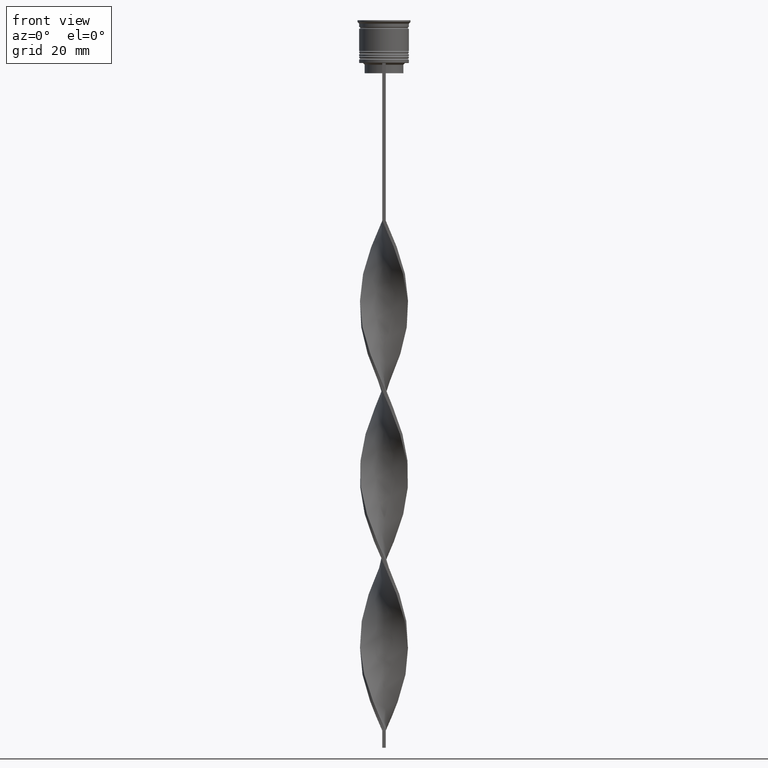
[diagram: clean part render]
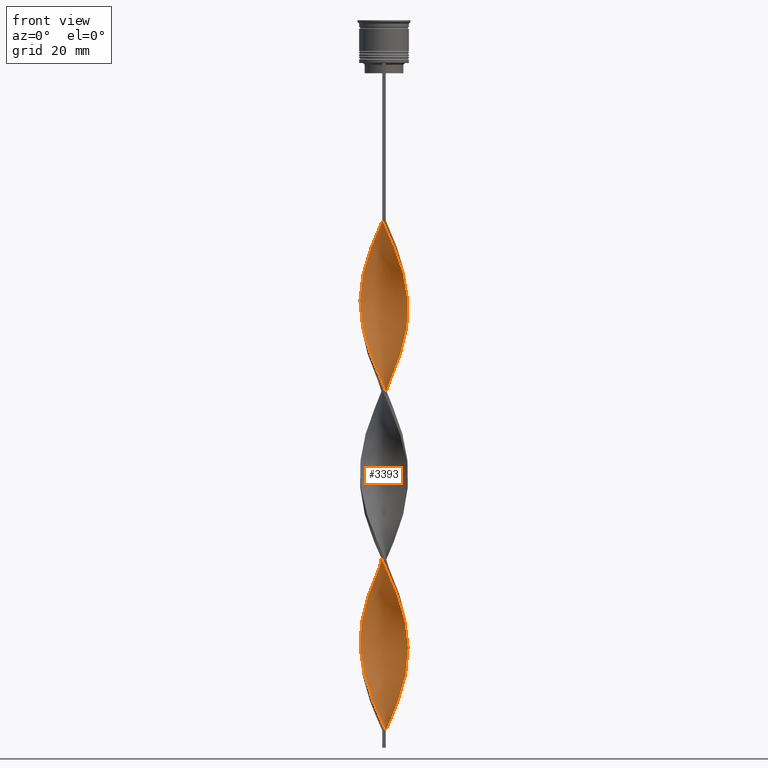
[diagram: same view with one face highlighted and labeled with its STEP entity id]
A machine part, front view. The second image highlights one B-rep face of the part: STEP entity #3393.
In plain terms, the highlighted face is a freeform B-spline surface patch.
Its self-contained STEP definition (entity closure, byte-faithful):
#17 = CARTESIAN_POINT ( 'NONE',  ( -6.736663859307489233, 2.071291312187312439, -176.8235294117647243 ) ) ;
#28 = CARTESIAN_POINT ( 'NONE',  ( 3.259916572276687852, 6.214736031545977646, -149.0686274509803866 ) ) ;
#35 = CARTESIAN_POINT ( 'NONE',  ( 3.259916572276687852, 6.214736031545977646, -149.0686274509803866 ) ) ;
#51 = CARTESIAN_POINT ( 'NONE',  ( 1.440874626053877616, 6.899041090270182863, -153.4509803921568789 ) ) ;
#69 = CARTESIAN_POINT ( 'NONE',  ( -0.1486455236942086366, 7.046331823121012583, -109.6274509803921404 ) ) ;
#72 = CARTESIAN_POINT ( 'NONE',  ( -4.637232685409778732, 5.307443892742487179, -68.72549019607842524 ) ) ;
#84 = CARTESIAN_POINT ( 'NONE',  ( 6.043273861597165286, -3.567750136113298165, -175.3627450980391984 ) ) ;
#87 = CARTESIAN_POINT ( 'NONE',  ( -7.029988692409719242, 0.5021420494578385796, -133.0000000000000000 ) ) ;
#89 = CARTESIAN_POINT ( 'NONE',  ( -0.5000000000000000000, -6.999999999999997335, -58.50000000000000000 ) ) ;
#92 = CARTESIAN_POINT ( 'NONE',  ( -2.406820825421679189, 6.624205700879072012, -62.88235294117647101 ) ) ;
#101 = CARTESIAN_POINT ( 'NONE',  ( 3.583034730602818296, 6.069163844594755552, -100.8627450980392126 ) ) ;
#102 = CARTESIAN_POINT ( 'NONE',  ( 5.887437909151303828, 3.819433841014672648, -93.55882352941176805 ) ) ;
#110 = CARTESIAN_POINT ( 'NONE',  ( 6.818021416257463940, 1.785349159323427415, -135.9215686274509665 ) ) ;
#125 = CARTESIAN_POINT ( 'NONE',  ( 7.029988692409719242, -0.5021420494578376914, -182.6666666666666572 ) ) ;
#126 = CARTESIAN_POINT ( 'NONE',  ( -4.856933420439685456, 5.107160209221782488, -121.3137254901960773 ) ) ;
#138 = CARTESIAN_POINT ( 'NONE',  ( 4.346365046915568797, -5.509910242367891620, -169.5196078431372371 ) ) ;
#139 = CARTESIAN_POINT ( 'NONE',  ( 3.583034730602818740, 6.069163844594755552, -100.8627450980392126 ) ) ;
#140 = ORIENTED_EDGE ( 'NONE', *, *, #455, .T. ) ;
#155 = CARTESIAN_POINT ( 'NONE',  ( -6.489012217373701930, -2.672586844758237490, -140.3039215686274588 ) ) ;
#158 = CARTESIAN_POINT ( 'NONE',  ( 4.637232685409776067, 5.307443892742482738, -197.2745098039215463 ) ) ;
#178 = CARTESIAN_POINT ( 'NONE',  ( -1.777733174557943663, 6.788936938879031047, -61.42156862745097357 ) ) ;
#197 = CARTESIAN_POINT ( 'NONE',  ( -6.373874598089927623, -3.007758344858554977, -89.17647058823527573 ) ) ;
#199 = CARTESIAN_POINT ( 'NONE',  ( 7.029988692409719242, -0.5021420494578376914, -182.6666666666666856 ) ) ;
#207 = CARTESIAN_POINT ( 'NONE',  ( -5.533515242862685923, 4.364985304700188529, -170.9803921568627629 ) ) ;
#215 = CARTESIAN_POINT ( 'NONE',  ( -2.062455548607893263, -6.707926438924069146, -102.3235294117646959 ) ) ;
#217 = CARTESIAN_POINT ( 'NONE',  ( 2.684036471161910242, -6.516811787577953652, -165.1372549019608016 ) ) ;
#223 = CARTESIAN_POINT ( 'NONE',  ( 6.924005054333587594, -1.143745604390631110, -81.87254901960783116 ) ) ;
#236 = CARTESIAN_POINT ( 'NONE',  ( 6.869610997245777284, -1.434728108918172929, -128.6176470588235361 ) ) ;
#249 = CARTESIAN_POINT ( 'NONE',  ( 4.637232685409776067, 5.307443892742482738, -97.94117647058824616 ) ) ;
#259 = CARTESIAN_POINT ( 'NONE',  ( 5.887437909151303828, 3.819433841014672648, -192.8921568627450824 ) ) ;
#275 = CARTESIAN_POINT ( 'NONE',  ( 0.4999999999999991673, -7.000000000000002665, -207.5000000000000000 ) ) ;
#284 = CARTESIAN_POINT ( 'NONE',  ( -0.5000000000000000000, 7.000000000000002665, -58.50000000000000000 ) ) ;
#309 = CARTESIAN_POINT ( 'NONE',  ( 6.043273861597169727, 3.567750136113302162, -140.3039215686274588 ) ) ;
#325 = CARTESIAN_POINT ( 'NONE',  ( 5.284803272772052196, 4.617451068294914585, -143.2254901960784537 ) ) ;
#330 = FACE_OUTER_BOUND ( 'NONE', #2940, .T. ) ;
#335 = CARTESIAN_POINT ( 'NONE',  ( 5.284803272772052196, 4.617451068294914585, -143.2254901960784537 ) ) ;
#344 = CARTESIAN_POINT ( 'NONE',  ( 6.818021416257463940, 1.785349159323427415, -135.9215686274509665 ) ) ;
#350 = CARTESIAN_POINT ( 'NONE',  ( 3.259916572276681634, -6.214736031545974981, -67.26470588235292780 ) ) ;
#351 = CARTESIAN_POINT ( 'NONE',  ( 4.637232685409776067, 5.307443892742482738, -97.94117647058824616 ) ) ;
#357 = CARTESIAN_POINT ( 'NONE',  ( 4.110133708006299180, -5.688303868668622698, -116.9313725490195992 ) ) ;
#372 = CARTESIAN_POINT ( 'NONE',  ( -2.684036471161910242, 6.516811787577953652, -115.4705882352940876 ) ) ;
#374 = CARTESIAN_POINT ( 'NONE',  ( 4.346365046915568797, -5.509910242367891620, -70.18627450980390847 ) ) ;
#380 = CARTESIAN_POINT ( 'NONE',  ( 5.085373964136232772, -4.836214598721336522, -119.8529411764705799 ) ) ;
#390 = CARTESIAN_POINT ( 'NONE',  ( -5.887437909151304716, -3.819433841014671760, -143.2254901960784537 ) ) ;
#393 = CARTESIAN_POINT ( 'NONE',  ( 0.5000000000000008882, 6.999999999999997335, -108.1666666666666572 ) ) ;
#398 = CARTESIAN_POINT ( 'NONE',  ( 7.029988692409724571, 0.5021420494578359150, -133.0000000000000000 ) ) ;
#406 = CARTESIAN_POINT ( 'NONE',  ( 6.818021416257458611, -1.785349159323424972, -179.7450980392157192 ) ) ;
#408 = CARTESIAN_POINT ( 'NONE',  ( 4.110133708006296516, 5.688303868668619145, -99.40196078431372939 ) ) ;
#416 = CARTESIAN_POINT ( 'NONE',  ( -3.259916572276684299, -6.214736031545979422, -99.40196078431372939 ) ) ;
#428 = CARTESIAN_POINT ( 'NONE',  ( 6.736663859307483904, 2.071291312187309774, -188.5098039215686185 ) ) ;
#429 = CARTESIAN_POINT ( 'NONE',  ( -3.583034730602817408, -6.069163844594757329, -150.5294117647058840 ) ) ;
#444 = CARTESIAN_POINT ( 'NONE',  ( -6.373874598089922294, 3.007758344858553201, -127.1568627450980102 ) ) ;
#455 = EDGE_CURVE ( 'NONE', #1791, #614, #1565, .T. ) ;
#459 = CARTESIAN_POINT ( 'NONE',  ( -5.712673125104412719, -4.127741927368047570, -92.09803921568628482 ) ) ;
#461 = CARTESIAN_POINT ( 'NONE',  ( 6.373874598089922294, -3.007758344858553201, -176.8235294117647243 ) ) ;
#468 = CARTESIAN_POINT ( 'NONE',  ( -0.5000000000000000000, 7.000000000000002665, -157.8333333333333144 ) ) ;
#480 = CARTESIAN_POINT ( 'NONE',  ( -4.110133708006299180, 5.688303868668623586, -67.26470588235292780 ) ) ;
#483 = CARTESIAN_POINT ( 'NONE',  ( 5.887437909151303828, 3.819433841014672648, -192.8921568627450824 ) ) ;
#491 = CARTESIAN_POINT ( 'NONE',  ( -6.489012217373707259, 2.672586844758237934, -175.3627450980391984 ) ) ;
#498 = CARTESIAN_POINT ( 'NONE',  ( 2.406820825421679189, 6.624205700879066683, -203.1176470588235361 ) ) ;
#500 = CARTESIAN_POINT ( 'NONE',  ( 3.583034730602818740, 6.069163844594755552, -200.1960784313725696 ) ) ;
#515 = CARTESIAN_POINT ( 'NONE',  ( -3.583034730602820517, 6.069163844594761770, -65.80392156862747299 ) ) ;
#534 = CARTESIAN_POINT ( 'NONE',  ( 7.029988692409723683, 0.5021420494578359150, -133.0000000000000000 ) ) ;
#547 = CARTESIAN_POINT ( 'NONE',  ( 2.062455548607891487, -6.707926438924064705, -64.34313725490196134 ) ) ;
#557 = CARTESIAN_POINT ( 'NONE',  ( -5.887437909151306492, 3.819433841014676645, -172.4411764705882035 ) ) ;
#583 = CARTESIAN_POINT ( 'NONE',  ( -1.148645523694208581, 6.953668176878987417, -59.96078431372549034 ) ) ;
#589 = CARTESIAN_POINT ( 'NONE',  ( -0.7947600748740422105, -6.972686456695599944, -204.5784313725490335 ) ) ;
#612 = CARTESIAN_POINT ( 'NONE',  ( -2.994927778012249409, 6.346684772736916891, -163.6764705882352757 ) ) ;
#614 = VERTEX_POINT ( 'NONE', #876 ) ;
#622 = CARTESIAN_POINT ( 'NONE',  ( -6.373874598089927623, -3.007758344858554977, -89.17647058823528994 ) ) ;
#627 = CARTESIAN_POINT ( 'NONE',  ( 3.835796673391459688, 5.912660275514002528, -147.6078431372548891 ) ) ;
#632 = CARTESIAN_POINT ( 'NONE',  ( 7.016273413796890956, 0.1480114280955957262, -84.79411764705882604 ) ) ;
#642 = CARTESIAN_POINT ( 'NONE',  ( 2.406820825421679189, -6.624205700879072012, -112.5490196078431495 ) ) ;
#655 = CARTESIAN_POINT ( 'NONE',  ( -0.5000000000000000000, -6.999999999999997335, -157.8333333333333144 ) ) ;
#658 = CARTESIAN_POINT ( 'NONE',  ( 6.924005054333587594, -1.143745604390631110, -81.87254901960783116 ) ) ;
#667 = CARTESIAN_POINT ( 'NONE',  ( 0.4999999999999991673, -7.000000000000002665, -108.1666666666666572 ) ) ;
#680 = CARTESIAN_POINT ( 'NONE',  ( -7.002558135184062671, -0.7981649056490314198, -135.9215686274509665 ) ) ;
#681 = CARTESIAN_POINT ( 'NONE',  ( -4.637232685409776067, -5.307443892742481850, -147.6078431372548891 ) ) ;
#685 = CARTESIAN_POINT ( 'NONE',  ( 7.002558135184068888, -0.7981649056490286442, -130.0784313725490335 ) ) ;
#689 = CARTESIAN_POINT ( 'NONE',  ( 0.4999999999999991673, -7.000000000000002665, -207.5000000000000000 ) ) ;
#695 = CARTESIAN_POINT ( 'NONE',  ( -4.110133708006299180, -5.688303868668616481, -149.0686274509803866 ) ) ;
#696 = CARTESIAN_POINT ( 'NONE',  ( -6.818021416257460388, 1.785349159323422308, -130.0784313725490335 ) ) ;
#701 = CARTESIAN_POINT ( 'NONE',  ( -3.835796673391458800, -5.912660275514003416, -97.94117647058824616 ) ) ;
#712 = CARTESIAN_POINT ( 'NONE',  ( 7.016273413796890956, 0.1480114280955957262, -184.1274509803921546 ) ) ;
#714 = CARTESIAN_POINT ( 'NONE',  ( -4.110133708006299180, -5.688303868668616481, -149.0686274509803866 ) ) ;
#722 = CARTESIAN_POINT ( 'NONE',  ( -6.818021416257463940, -1.785349159323426527, -185.5882352941176237 ) ) ;
#737 = CARTESIAN_POINT ( 'NONE',  ( 6.241360575439922620, 3.273882377329162985, -191.4313725490196134 ) ) ;
#740 = CARTESIAN_POINT ( 'NONE',  ( 6.373874598089922294, -3.007758344858553201, -77.49019607843136725 ) ) ;
#745 =( BOUNDED_CURVE ( )  B_SPLINE_CURVE ( 2, ( #940, #1279, #2149, #1613, #1863, #1260, #3663, #2702, #374, #1031, #2774, #3288, #1878, #740, #1303, #2134, #658, #1845, #3643, #2478, #3012, #3028, #2738, #2986, #102, #2423, #2181, #351, #408, #139, #2463, #2402, #1595, #2443, #393, #69, #1575, #1244, #2758, #3603, #3627, #1001, #1318, #126, #1017, #1895, #3371, #1539, #3334, #696, #957, #87, #2165, #3350, #979, #3585, #2111, #1558, #3068, #2721, #3315, #681, #714, #429, #3045, #1396, #3453, #2846, #2537, #2517, #3408, #2238, #761, #217, #1068, #1630, #3123, #2218, #3715, #3144, #780, #461, #1085, #2276, #1970, #199, #3467, #1949, #2790, #1932, #3429, #1646, #483, #802, #1378, #158, #819, #500, #2808, #3158, #1124, #1669, #3685 ),
 .UNSPECIFIED., .F., .T. ) 
 B_SPLINE_CURVE_WITH_KNOTS ( ( 3, 2, 2, 2, 2, 2, 2, 2, 2, 2, 2, 2, 2, 2, 2, 2, 2, 2, 2, 2, 2, 2, 2, 2, 2, 2, 2, 2, 2, 2, 2, 2, 2, 2, 2, 2, 2, 2, 2, 2, 2, 2, 2, 2, 2, 2, 2, 2, 2, 2, 2, 3 ),
 ( 0.000000000000000000, 0.01470588235294117453, 0.02941176470588234906, 0.04411764705882353227, 0.05882352941176469813, 0.07352941176470588480, 0.08823529411764706454, 0.1029411764705882443, 0.1176470588235293963, 0.1323529411764705899, 0.1470588235294117696, 0.1617647058823529493, 0.1764705882352941291, 0.1911764705882352811, 0.2058823529411764885, 0.2205882352941176405, 0.2352941176470587925, 0.2500000000000000000, 0.2647058823529411797, 0.2794117647058823595, 0.2941176470588235392, 0.3088235294117647189, 0.3235294117647058987, 0.3382352941176470229, 0.3529411764705882582, 0.3676470588235294379, 0.3823529411764705621, 0.3970588235294117418, 0.4117647058823529771, 0.4264705882352941013, 0.4411764705882352811, 0.4558823529411764608, 0.4705882352941175850, 0.4852941176470588203, 0.5000000000000000000, 0.5147058823529411242, 0.5294117647058823595, 0.5441176470588234837, 0.5588235294117647189, 0.5735294117647058432, 0.5882352941176470784, 0.6029411764705882026, 0.6176470588235294379, 0.6323529411764705621, 0.6470588235294117974, 0.6617647058823529216, 0.6764705882352940458, 0.6911764705882351700, 0.7058823529411765163, 0.7205882352941176405, 0.7352941176470588758, 0.7500000000000000000 ),
 .UNSPECIFIED. ) 
 CURVE ( )  GEOMETRIC_REPRESENTATION_ITEM ( )  RATIONAL_B_SPLINE_CURVE ( ( 1.000000000000000000, 0.9957341762950344677, 1.000000000000000000, 0.9957341762950344677, 1.000000000000000000, 0.9957341762950344677, 1.000000000000000000, 0.9957341762950344677, 1.000000000000000000, 0.9957341762950344677, 1.000000000000000000, 0.9957341762950344677, 1.000000000000000000, 0.9957341762950344677, 1.000000000000000000, 0.9957341762950344677, 1.000000000000000000, 0.9957341762950344677, 1.000000000000000000, 0.9957341762950344677, 1.000000000000000000, 0.9957341762950344677, 1.000000000000000000, 0.9957341762950344677, 1.000000000000000000, 0.9957341762950344677, 1.000000000000000000, 0.9957341762950344677, 1.000000000000000000, 0.9957341762950344677, 1.000000000000000000, 0.9957341762950344677, 1.000000000000000000, 0.9957341762950344677, 1.000000000000000000, 0.9957341762950344677, 1.000000000000000000, 0.9957341762950344677, 1.000000000000000000, 0.9957341762950344677, 1.000000000000000000, 0.9957341762950344677, 1.000000000000000000, 0.9957341762950344677, 1.000000000000000000, 0.9957341762950344677, 1.000000000000000000, 0.9957341762950344677, 1.000000000000000000, 0.9957341762950344677, 1.000000000000000000, 0.9957341762950344677, 1.000000000000000000, 0.9957341762950344677, 1.000000000000000000, 0.9957341762950344677, 1.000000000000000000, 0.9957341762950344677, 1.000000000000000000, 0.9957341762950344677, 1.000000000000000000, 0.9957341762950344677, 1.000000000000000000, 0.9957341762950344677, 1.000000000000000000, 0.9957341762950344677, 1.000000000000000000, 0.9957341762950344677, 1.000000000000000000, 0.9957341762950344677, 1.000000000000000000, 0.9957341762950344677, 1.000000000000000000, 0.9957341762950344677, 1.000000000000000000, 0.9957341762950344677, 1.000000000000000000, 0.9957341762950344677, 1.000000000000000000, 0.9957341762950344677, 1.000000000000000000, 0.9957341762950344677, 1.000000000000000000, 0.9957341762950344677, 1.000000000000000000, 0.9957341762950344677, 1.000000000000000000, 0.9957341762950344677, 1.000000000000000000, 0.9957341762950344677, 1.000000000000000000, 0.9957341762950344677, 1.000000000000000000, 0.9957341762950344677, 1.000000000000000000, 0.9957341762950344677, 1.000000000000000000, 0.9957341762950344677, 1.000000000000000000, 0.9957341762950344677, 1.000000000000000000, 0.9957341762950344677, 1.000000000000000000 ) ) 
 REPRESENTATION_ITEM ( '' )  );
#759 = CARTESIAN_POINT ( 'NONE',  ( -6.043273861597169727, -3.567750136113299941, -90.63725490196078738 ) ) ;
#761 = CARTESIAN_POINT ( 'NONE',  ( 2.062455548607891487, -6.707926438924064705, -163.6764705882352757 ) ) ;
#770 = CARTESIAN_POINT ( 'NONE',  ( -4.110133708006299180, 5.688303868668623586, -166.5980392156862706 ) ) ;
#778 = CARTESIAN_POINT ( 'NONE',  ( 0.4999999999999991673, -7.000000000000002665, -108.1666666666666572 ) ) ;
#780 = CARTESIAN_POINT ( 'NONE',  ( 6.043273861597165286, -3.567750136113298165, -175.3627450980391984 ) ) ;
#788 = CARTESIAN_POINT ( 'NONE',  ( -5.085373964136232772, 4.836214598721336522, -169.5196078431372371 ) ) ;
#798 = CARTESIAN_POINT ( 'NONE',  ( 1.777733174557942775, 6.788936938879025718, -204.5784313725490335 ) ) ;
#802 = CARTESIAN_POINT ( 'NONE',  ( 5.533515242862682371, 4.364985304700184976, -194.3529411764705799 ) ) ;
#810 = CARTESIAN_POINT ( 'NONE',  ( -2.406820825421679189, 6.624205700879072012, -162.2156862745098351 ) ) ;
#817 = CARTESIAN_POINT ( 'NONE',  ( 6.241360575439926173, -3.273882377329166538, -124.2352941176470580 ) ) ;
#819 = CARTESIAN_POINT ( 'NONE',  ( 4.110133708006296516, 5.688303868668619145, -198.7352941176470722 ) ) ;
#832 = CARTESIAN_POINT ( 'NONE',  ( 4.637232685409776067, 5.307443892742482738, -197.2745098039215463 ) ) ;
#852 = CARTESIAN_POINT ( 'NONE',  ( -5.533515242862685035, 4.364985304700188529, -170.9803921568627629 ) ) ;
#871 = CARTESIAN_POINT ( 'NONE',  ( -2.406820825421679189, 6.624205700879071124, -162.2156862745098351 ) ) ;
#876 = CARTESIAN_POINT ( 'NONE',  ( -0.5000000000000000000, 7.000000000000002665, -58.50000000000000000 ) ) ;
#889 = CARTESIAN_POINT ( 'NONE',  ( -6.373874598089927623, -3.007758344858554977, -188.5098039215686185 ) ) ;
#905 = CARTESIAN_POINT ( 'NONE',  ( -3.835796673391458800, -5.912660275514003416, -197.2745098039215463 ) ) ;
#926 = CARTESIAN_POINT ( 'NONE',  ( -0.7947600748740422105, -6.972686456695599944, -105.2450980392156765 ) ) ;
#931 = CARTESIAN_POINT ( 'NONE',  ( -3.259916572276684299, -6.214736031545979422, -198.7352941176470722 ) ) ;
#937 = CARTESIAN_POINT ( 'NONE',  ( 5.284803272772046867, -4.617451068294912808, -73.10784313725488914 ) ) ;
#940 = CARTESIAN_POINT ( 'NONE',  ( -0.5000000000000000000, -6.999999999999997335, -58.50000000000000000 ) ) ;
#945 = CARTESIAN_POINT ( 'NONE',  ( -4.856933420439688120, -5.107160209221786928, -95.01960784313726549 ) ) ;
#957 = CARTESIAN_POINT ( 'NONE',  ( -6.924005054333588483, 1.143745604390630444, -131.5392156862745310 ) ) ;
#963 = CARTESIAN_POINT ( 'NONE',  ( -7.029988692409724571, -0.5021420494578368032, -83.33333333333332860 ) ) ;
#965 =( BOUNDED_SURFACE ( )  B_SPLINE_SURFACE ( 1, 2, ( 
 ( #1818, #3780, #2380, #2985, #547, #1989, #350, #3183, #3164, #1148, #937, #1691, #2855, #2094, #3269, #2699, #223, #2893, #632, #1403, #2564, #3744, #2586, #2282, #1115, #2265, #2875, #249, #1629, #101, #1049, #3027, #1317, #1592, #2476, #2421, #1914, #3602, #977, #372, #3347, #3314, #1277, #2788, #3661, #3287, #1015, #444, #1334, #2147, #1302, #3331, #1029, #680, #1557, #3366, #155, #2130, #390, #2461, #3642, #3082, #695, #1571, #2493, #3010, #1861, #3680, #655, #2735, #2164, #1841, #1612, #2439, #3625, #999, #138, #2719, #1876, #2178, #84, #1259, #3042, #406, #2754, #125, #712, #1892, #3064, #428, #2773, #737, #259, #2887, #3466, #832, #1948, #2515, #3387, #498, #798, #3172, #3157 ),
 ( #3426, #1968, #178, #3119, #2863, #515, #480, #2201, #1438, #3769, #1122, #3699, #1358, #1930, #3102, #3139, #1665, #1376, #2828, #2595, #2236, #197, #759, #459, #2577, #1682, #3753, #1066, #2844, #2216, #215, #1644, #2806, #1996, #778, #1394, #3406, #2257, #2553, #2535, #3733, #3714, #1084, #1106, #3451, #817, #1982, #1700, #236, #2274, #1419, #534, #1722, #344, #2937, #2016, #309, #1492, #325, #2370, #1773, #627, #35, #3788, #3246, #2611, #1507, #2069, #3194, #3484, #1812, #871, #612, #1794, #2653, #2346, #2691, #852, #557, #2670, #3223, #17, #2956, #1193, #3561, #1455, #2901, #3538, #1177, #889, #1137, #2050, #3208, #1527, #2290, #905, #931, #1211, #1738, #2089, #589, #2331, #275 ) ),
 .UNSPECIFIED., .F., .F., .F. ) 
 B_SPLINE_SURFACE_WITH_KNOTS ( ( 2, 2 ),
 ( 3, 2, 2, 2, 2, 2, 2, 2, 2, 2, 2, 2, 2, 2, 2, 2, 2, 2, 2, 2, 2, 2, 2, 2, 2, 2, 2, 2, 2, 2, 2, 2, 2, 2, 2, 2, 2, 2, 2, 2, 2, 2, 2, 2, 2, 2, 2, 2, 2, 2, 2, 3 ),
 ( 0.000000000000000000, 1.000000000000000000 ),
 ( 0.000000000000000000, 0.01470588235294117627, 0.02941176470588235253, 0.04411764705882353227, 0.05882352941176470507, 0.07352941176470588480, 0.08823529411764706454, 0.1029411764705882304, 0.1176470588235294101, 0.1323529411764705899, 0.1470588235294117696, 0.1617647058823529493, 0.1764705882352941291, 0.1911764705882352811, 0.2058823529411764608, 0.2205882352941176405, 0.2352941176470588203, 0.2500000000000000000, 0.2647058823529411797, 0.2794117647058823595, 0.2941176470588235392, 0.3088235294117647189, 0.3235294117647058987, 0.3382352941176470784, 0.3529411764705882582, 0.3676470588235294379, 0.3823529411764705621, 0.3970588235294117418, 0.4117647058823529216, 0.4264705882352941013, 0.4411764705882352811, 0.4558823529411764608, 0.4705882352941176405, 0.4852941176470588203, 0.5000000000000000000, 0.5147058823529411242, 0.5294117647058823595, 0.5441176470588234837, 0.5588235294117647189, 0.5735294117647058432, 0.5882352941176470784, 0.6029411764705882026, 0.6176470588235294379, 0.6323529411764705621, 0.6470588235294117974, 0.6617647058823529216, 0.6764705882352941568, 0.6911764705882352811, 0.7058823529411765163, 0.7205882352941176405, 0.7352941176470588758, 0.7500000000000000000 ),
 .UNSPECIFIED. ) 
 GEOMETRIC_REPRESENTATION_ITEM ( )  RATIONAL_B_SPLINE_SURFACE ( (
 ( 1.000000000000000000, 0.9957341762950344677, 1.000000000000000000, 0.9957341762950344677, 1.000000000000000000, 0.9957341762950344677, 1.000000000000000000, 0.9957341762950344677, 1.000000000000000000, 0.9957341762950344677, 1.000000000000000000, 0.9957341762950344677, 1.000000000000000000, 0.9957341762950344677, 1.000000000000000000, 0.9957341762950344677, 1.000000000000000000, 0.9957341762950344677, 1.000000000000000000, 0.9957341762950344677, 1.000000000000000000, 0.9957341762950344677, 1.000000000000000000, 0.9957341762950344677, 1.000000000000000000, 0.9957341762950344677, 1.000000000000000000, 0.9957341762950344677, 1.000000000000000000, 0.9957341762950344677, 1.000000000000000000, 0.9957341762950344677, 1.000000000000000000, 0.9957341762950344677, 1.000000000000000000, 0.9957341762950344677, 1.000000000000000000, 0.9957341762950344677, 1.000000000000000000, 0.9957341762950344677, 1.000000000000000000, 0.9957341762950344677, 1.000000000000000000, 0.9957341762950344677, 1.000000000000000000, 0.9957341762950344677, 1.000000000000000000, 0.9957341762950344677, 1.000000000000000000, 0.9957341762950344677, 1.000000000000000000, 0.9957341762950344677, 1.000000000000000000, 0.9957341762950344677, 1.000000000000000000, 0.9957341762950344677, 1.000000000000000000, 0.9957341762950344677, 1.000000000000000000, 0.9957341762950344677, 1.000000000000000000, 0.9957341762950344677, 1.000000000000000000, 0.9957341762950344677, 1.000000000000000000, 0.9957341762950344677, 1.000000000000000000, 0.9957341762950344677, 1.000000000000000000, 0.9957341762950344677, 1.000000000000000000, 0.9957341762950344677, 1.000000000000000000, 0.9957341762950344677, 1.000000000000000000, 0.9957341762950344677, 1.000000000000000000, 0.9957341762950344677, 1.000000000000000000, 0.9957341762950344677, 1.000000000000000000, 0.9957341762950344677, 1.000000000000000000, 0.9957341762950344677, 1.000000000000000000, 0.9957341762950344677, 1.000000000000000000, 0.9957341762950344677, 1.000000000000000000, 0.9957341762950344677, 1.000000000000000000, 0.9957341762950344677, 1.000000000000000000, 0.9957341762950344677, 1.000000000000000000, 0.9957341762950344677, 1.000000000000000000, 0.9957341762950344677, 1.000000000000000000, 0.9957341762950344677, 1.000000000000000000, 0.9957341762950344677, 1.000000000000000000),
 ( 1.000000000000000000, 0.9957341762950344677, 1.000000000000000000, 0.9957341762950344677, 1.000000000000000000, 0.9957341762950344677, 1.000000000000000000, 0.9957341762950344677, 1.000000000000000000, 0.9957341762950344677, 1.000000000000000000, 0.9957341762950344677, 1.000000000000000000, 0.9957341762950344677, 1.000000000000000000, 0.9957341762950344677, 1.000000000000000000, 0.9957341762950344677, 1.000000000000000000, 0.9957341762950344677, 1.000000000000000000, 0.9957341762950344677, 1.000000000000000000, 0.9957341762950344677, 1.000000000000000000, 0.9957341762950344677, 1.000000000000000000, 0.9957341762950344677, 1.000000000000000000, 0.9957341762950344677, 1.000000000000000000, 0.9957341762950344677, 1.000000000000000000, 0.9957341762950344677, 1.000000000000000000, 0.9957341762950344677, 1.000000000000000000, 0.9957341762950344677, 1.000000000000000000, 0.9957341762950344677, 1.000000000000000000, 0.9957341762950344677, 1.000000000000000000, 0.9957341762950344677, 1.000000000000000000, 0.9957341762950344677, 1.000000000000000000, 0.9957341762950344677, 1.000000000000000000, 0.9957341762950344677, 1.000000000000000000, 0.9957341762950344677, 1.000000000000000000, 0.9957341762950344677, 1.000000000000000000, 0.9957341762950344677, 1.000000000000000000, 0.9957341762950344677, 1.000000000000000000, 0.9957341762950344677, 1.000000000000000000, 0.9957341762950344677, 1.000000000000000000, 0.9957341762950344677, 1.000000000000000000, 0.9957341762950344677, 1.000000000000000000, 0.9957341762950344677, 1.000000000000000000, 0.9957341762950344677, 1.000000000000000000, 0.9957341762950344677, 1.000000000000000000, 0.9957341762950344677, 1.000000000000000000, 0.9957341762950344677, 1.000000000000000000, 0.9957341762950344677, 1.000000000000000000, 0.9957341762950344677, 1.000000000000000000, 0.9957341762950344677, 1.000000000000000000, 0.9957341762950344677, 1.000000000000000000, 0.9957341762950344677, 1.000000000000000000, 0.9957341762950344677, 1.000000000000000000, 0.9957341762950344677, 1.000000000000000000, 0.9957341762950344677, 1.000000000000000000, 0.9957341762950344677, 1.000000000000000000, 0.9957341762950344677, 1.000000000000000000, 0.9957341762950344677, 1.000000000000000000, 0.9957341762950344677, 1.000000000000000000, 0.9957341762950344677, 1.000000000000000000) ) ) 
 REPRESENTATION_ITEM ( '' )  SURFACE ( )  );
#976 =( BOUNDED_CURVE ( )  B_SPLINE_CURVE ( 2, ( #284, #583, #1766, #92, #2409, #2707, #2359, #72, #3553, #1265, #2101, #3590, #1823, #1248, #987, #2388, #2116, #963, #3295, #3032, #1851, #622, #3573, #3319, #3609, #945, #2663, #701, #416, #1582, #2971, #1806, #926, #2084, #667, #3277, #2991, #642, #1883, #3016, #357, #1545, #380, #1519, #2137, #1562, #3258, #2726, #2428, #685, #1868, #398, #2744, #110, #1289, #2449, #3631, #1005, #335, #2154, #3339, #3051, #28, #1204, #2682, #51, #1229, #3131, #468, #1324, #2837, #810, #3397, #2467, #770, #1939, #788, #207, #2209, #1093, #491, #2191, #3150, #2485, #3415, #3692, #1956, #722, #1386, #1904, #3075, #3650, #1656, #1618, #3378, #2245, #1675, #3111, #2543, #3720, #2819, #2506, #3440 ),
 .UNSPECIFIED., .F., .T. ) 
 B_SPLINE_CURVE_WITH_KNOTS ( ( 3, 2, 2, 2, 2, 2, 2, 2, 2, 2, 2, 2, 2, 2, 2, 2, 2, 2, 2, 2, 2, 2, 2, 2, 2, 2, 2, 2, 2, 2, 2, 2, 2, 2, 2, 2, 2, 2, 2, 2, 2, 2, 2, 2, 2, 2, 2, 2, 2, 2, 2, 3 ),
 ( 0.000000000000000000, 0.01470588235294117453, 0.02941176470588234906, 0.04411764705882353227, 0.05882352941176469813, 0.07352941176470588480, 0.08823529411764706454, 0.1029411764705882443, 0.1176470588235293963, 0.1323529411764705899, 0.1470588235294117696, 0.1617647058823529493, 0.1764705882352941291, 0.1911764705882352811, 0.2058823529411764885, 0.2205882352941176405, 0.2352941176470587925, 0.2500000000000000000, 0.2647058823529411797, 0.2794117647058823595, 0.2941176470588235392, 0.3088235294117647189, 0.3235294117647058987, 0.3382352941176470229, 0.3529411764705882582, 0.3676470588235294379, 0.3823529411764705621, 0.3970588235294117418, 0.4117647058823529771, 0.4264705882352941013, 0.4411764705882352811, 0.4558823529411764608, 0.4705882352941175850, 0.4852941176470588203, 0.5000000000000000000, 0.5147058823529411242, 0.5294117647058823595, 0.5441176470588234837, 0.5588235294117647189, 0.5735294117647058432, 0.5882352941176470784, 0.6029411764705882026, 0.6176470588235294379, 0.6323529411764705621, 0.6470588235294117974, 0.6617647058823529216, 0.6764705882352940458, 0.6911764705882351700, 0.7058823529411765163, 0.7205882352941176405, 0.7352941176470588758, 0.7500000000000000000 ),
 .UNSPECIFIED. ) 
 CURVE ( )  GEOMETRIC_REPRESENTATION_ITEM ( )  RATIONAL_B_SPLINE_CURVE ( ( 1.000000000000000000, 0.9957341762950344677, 1.000000000000000000, 0.9957341762950344677, 1.000000000000000000, 0.9957341762950344677, 1.000000000000000000, 0.9957341762950344677, 1.000000000000000000, 0.9957341762950344677, 1.000000000000000000, 0.9957341762950344677, 1.000000000000000000, 0.9957341762950344677, 1.000000000000000000, 0.9957341762950344677, 1.000000000000000000, 0.9957341762950344677, 1.000000000000000000, 0.9957341762950344677, 1.000000000000000000, 0.9957341762950344677, 1.000000000000000000, 0.9957341762950344677, 1.000000000000000000, 0.9957341762950344677, 1.000000000000000000, 0.9957341762950344677, 1.000000000000000000, 0.9957341762950344677, 1.000000000000000000, 0.9957341762950344677, 1.000000000000000000, 0.9957341762950344677, 1.000000000000000000, 0.9957341762950344677, 1.000000000000000000, 0.9957341762950344677, 1.000000000000000000, 0.9957341762950344677, 1.000000000000000000, 0.9957341762950344677, 1.000000000000000000, 0.9957341762950344677, 1.000000000000000000, 0.9957341762950344677, 1.000000000000000000, 0.9957341762950344677, 1.000000000000000000, 0.9957341762950344677, 1.000000000000000000, 0.9957341762950344677, 1.000000000000000000, 0.9957341762950344677, 1.000000000000000000, 0.9957341762950344677, 1.000000000000000000, 0.9957341762950344677, 1.000000000000000000, 0.9957341762950344677, 1.000000000000000000, 0.9957341762950344677, 1.000000000000000000, 0.9957341762950344677, 1.000000000000000000, 0.9957341762950344677, 1.000000000000000000, 0.9957341762950344677, 1.000000000000000000, 0.9957341762950344677, 1.000000000000000000, 0.9957341762950344677, 1.000000000000000000, 0.9957341762950344677, 1.000000000000000000, 0.9957341762950344677, 1.000000000000000000, 0.9957341762950344677, 1.000000000000000000, 0.9957341762950344677, 1.000000000000000000, 0.9957341762950344677, 1.000000000000000000, 0.9957341762950344677, 1.000000000000000000, 0.9957341762950344677, 1.000000000000000000, 0.9957341762950344677, 1.000000000000000000, 0.9957341762950344677, 1.000000000000000000, 0.9957341762950344677, 1.000000000000000000, 0.9957341762950344677, 1.000000000000000000, 0.9957341762950344677, 1.000000000000000000, 0.9957341762950344677, 1.000000000000000000, 0.9957341762950344677, 1.000000000000000000, 0.9957341762950344677, 1.000000000000000000 ) ) 
 REPRESENTATION_ITEM ( '' )  );
#977 = CARTESIAN_POINT ( 'NONE',  ( -2.062455548607892375, 6.707926438924063817, -114.0098039215686185 ) ) ;
#979 = CARTESIAN_POINT ( 'NONE',  ( -6.869610997245771955, -1.434728108918169154, -137.3823529411764639 ) ) ;
#987 = CARTESIAN_POINT ( 'NONE',  ( -6.869610997245777284, 1.434728108918170708, -78.95098039215686470 ) ) ;
#999 = CARTESIAN_POINT ( 'NONE',  ( 3.835796673391455691, -5.912660275513999864, -168.0588235294117680 ) ) ;
#1001 = CARTESIAN_POINT ( 'NONE',  ( -3.835796673391454359, 5.912660275513999864, -118.3921568627451109 ) ) ;
#1005 = CARTESIAN_POINT ( 'NONE',  ( 5.712673125104412719, 4.127741927368047570, -141.7647058823529562 ) ) ;
#1015 = CARTESIAN_POINT ( 'NONE',  ( -6.043273861597166174, 3.567750136113296389, -125.6960784313725412 ) ) ;
#1017 = CARTESIAN_POINT ( 'NONE',  ( -5.284803272772045979, 4.617451068294913696, -122.7745098039215605 ) ) ;
#1029 = CARTESIAN_POINT ( 'NONE',  ( -7.016273413796890956, -0.1480114280955932282, -134.4607843137254974 ) ) ;
#1031 = CARTESIAN_POINT ( 'NONE',  ( 4.856933420439684568, -5.107160209221783376, -71.64705882352942012 ) ) ;
#1039 = VECTOR ( 'NONE', #3577, 1000.000000000000000 ) ;
#1049 = CARTESIAN_POINT ( 'NONE',  ( 2.994927778012247632, 6.346684772736912450, -102.3235294117646959 ) ) ;
#1066 = CARTESIAN_POINT ( 'NONE',  ( -3.835796673391458800, -5.912660275514003416, -97.94117647058824616 ) ) ;
#1068 = CARTESIAN_POINT ( 'NONE',  ( 3.259916572276681634, -6.214736031545974981, -166.5980392156862706 ) ) ;
#1084 = CARTESIAN_POINT ( 'NONE',  ( 5.085373964136232772, -4.836214598721336522, -119.8529411764705799 ) ) ;
#1085 = CARTESIAN_POINT ( 'NONE',  ( 6.595948007173689120, -2.396553752090988088, -178.2843137254901933 ) ) ;
#1093 = CARTESIAN_POINT ( 'NONE',  ( -6.241360575439927949, 3.273882377329165205, -173.9019607843137294 ) ) ;
#1106 = CARTESIAN_POINT ( 'NONE',  ( 5.533515242862685923, -4.364985304700187640, -121.3137254901960631 ) ) ;
#1115 = CARTESIAN_POINT ( 'NONE',  ( 5.887437909151303828, 3.819433841014672648, -93.55882352941176805 ) ) ;
#1122 = CARTESIAN_POINT ( 'NONE',  ( -5.887437909151306492, 3.819433841014676645, -73.10784313725488914 ) ) ;
#1124 = CARTESIAN_POINT ( 'NONE',  ( 1.777733174557942775, 6.788936938879025718, -204.5784313725490335 ) ) ;
#1137 = CARTESIAN_POINT ( 'NONE',  ( -6.043273861597169727, -3.567750136113299941, -189.9705882352941160 ) ) ;
#1143 = EDGE_CURVE ( 'NONE', #1791, #2403, #745, .T. ) ;
#1148 = CARTESIAN_POINT ( 'NONE',  ( 4.856933420439684568, -5.107160209221783376, -71.64705882352943433 ) ) ;
#1177 = CARTESIAN_POINT ( 'NONE',  ( -6.595948007173694450, -2.396553752090990752, -187.0490196078431211 ) ) ;
#1191 = VERTEX_POINT ( 'NONE', #3756 ) ;
#1193 = CARTESIAN_POINT ( 'NONE',  ( -7.002558135184068000, 0.7981649056490309757, -179.7450980392157192 ) ) ;
#1204 = CARTESIAN_POINT ( 'NONE',  ( 2.684036471161911575, 6.516811787577958981, -150.5294117647058840 ) ) ;
#1211 = CARTESIAN_POINT ( 'NONE',  ( -2.684036471161914239, -6.516811787577958093, -200.1960784313725981 ) ) ;
#1229 = CARTESIAN_POINT ( 'NONE',  ( 0.7947600748740401011, 6.972686456695599944, -154.9117647058823479 ) ) ;
#1235 = CARTESIAN_POINT ( 'NONE',  ( 0.4999999999999996669, -2.333333333333336590, -207.5000000000000000 ) ) ;
#1244 = CARTESIAN_POINT ( 'NONE',  ( -1.440874626053873619, 6.899041090270179311, -112.5490196078431495 ) ) ;
#1248 = CARTESIAN_POINT ( 'NONE',  ( -6.736663859307489233, 2.071291312187312883, -77.49019607843136725 ) ) ;
#1259 = CARTESIAN_POINT ( 'NONE',  ( 6.373874598089922294, -3.007758344858553201, -176.8235294117647243 ) ) ;
#1260 = CARTESIAN_POINT ( 'NONE',  ( 2.684036471161910242, -6.516811787577953652, -65.80392156862745878 ) ) ;
#1265 = CARTESIAN_POINT ( 'NONE',  ( -5.533515242862685923, 4.364985304700188529, -71.64705882352942012 ) ) ;
#1277 = CARTESIAN_POINT ( 'NONE',  ( -4.346365046915568797, 5.509910242367891620, -119.8529411764705799 ) ) ;
#1279 = CARTESIAN_POINT ( 'NONE',  ( 0.1486455236942082203, -7.046331823121012583, -59.96078431372549034 ) ) ;
#1289 = CARTESIAN_POINT ( 'NONE',  ( 6.595948007173694450, 2.396553752090989864, -137.3823529411764639 ) ) ;
#1302 = CARTESIAN_POINT ( 'NONE',  ( -6.924005054333588483, 1.143745604390630444, -131.5392156862745310 ) ) ;
#1303 = CARTESIAN_POINT ( 'NONE',  ( 6.595948007173689120, -2.396553752090988088, -78.95098039215686470 ) ) ;
#1317 = CARTESIAN_POINT ( 'NONE',  ( 1.777733174557942775, 6.788936938879025718, -105.2450980392156765 ) ) ;
#1318 = CARTESIAN_POINT ( 'NONE',  ( -4.346365046915568797, 5.509910242367891620, -119.8529411764705799 ) ) ;
#1324 = CARTESIAN_POINT ( 'NONE',  ( -1.148645523694208581, 6.953668176878987417, -159.2941176470588118 ) ) ;
#1334 = CARTESIAN_POINT ( 'NONE',  ( -6.595948007173689120, 2.396553752090990752, -128.6176470588235361 ) ) ;
#1358 = CARTESIAN_POINT ( 'NONE',  ( -6.489012217373707259, 2.672586844758237934, -76.02941176470586981 ) ) ;
#1376 = CARTESIAN_POINT ( 'NONE',  ( -7.029988692409723683, -0.5021420494578368032, -83.33333333333332860 ) ) ;
#1378 = CARTESIAN_POINT ( 'NONE',  ( 5.085373964136230107, 4.836214598721332081, -195.8137254901960773 ) ) ;
#1386 = CARTESIAN_POINT ( 'NONE',  ( -6.595948007173694450, -2.396553752090990752, -187.0490196078431211 ) ) ;
#1394 = CARTESIAN_POINT ( 'NONE',  ( 1.148645523694209247, -6.953668176878987417, -109.6274509803921546 ) ) ;
#1396 = CARTESIAN_POINT ( 'NONE',  ( -2.406820825421679633, -6.624205700879066683, -153.4509803921568789 ) ) ;
#1403 = CARTESIAN_POINT ( 'NONE',  ( 7.002558135184062671, 0.7981649056490307537, -86.25490196078432348 ) ) ;
#1419 = CARTESIAN_POINT ( 'NONE',  ( 7.016273413796896286, -0.1480114280955963924, -131.5392156862745310 ) ) ;
#1438 = CARTESIAN_POINT ( 'NONE',  ( -5.085373964136232772, 4.836214598721336522, -70.18627450980390847 ) ) ;
#1455 = CARTESIAN_POINT ( 'NONE',  ( -7.029988692409723683, -0.5021420494578368032, -182.6666666666666572 ) ) ;
#1492 = CARTESIAN_POINT ( 'NONE',  ( 5.712673125104412719, 4.127741927368047570, -141.7647058823529562 ) ) ;
#1507 = CARTESIAN_POINT ( 'NONE',  ( 0.7947600748740401011, 6.972686456695599944, -154.9117647058823479 ) ) ;
#1519 = CARTESIAN_POINT ( 'NONE',  ( 5.533515242862686812, -4.364985304700187640, -121.3137254901960773 ) ) ;
#1527 = CARTESIAN_POINT ( 'NONE',  ( -4.856933420439688120, -5.107160209221786928, -194.3529411764705799 ) ) ;
#1532 = ORIENTED_EDGE ( 'NONE', *, *, #3539, .F. ) ;
#1539 = CARTESIAN_POINT ( 'NONE',  ( -6.373874598089922294, 3.007758344858553201, -127.1568627450980244 ) ) ;
#1545 = CARTESIAN_POINT ( 'NONE',  ( 4.637232685409777844, -5.307443892742488067, -118.3921568627451109 ) ) ;
#1557 = CARTESIAN_POINT ( 'NONE',  ( -6.869610997245771955, -1.434728108918169154, -137.3823529411764639 ) ) ;
#1558 = CARTESIAN_POINT ( 'NONE',  ( -6.241360575439923508, -3.273882377329162985, -141.7647058823529562 ) ) ;
#1562 = CARTESIAN_POINT ( 'NONE',  ( 6.241360575439927061, -3.273882377329166538, -124.2352941176470580 ) ) ;
#1565 = LINE ( 'NONE', #2121, #1039 ) ;
#1571 = CARTESIAN_POINT ( 'NONE',  ( -3.583034730602816964, -6.069163844594757329, -150.5294117647058840 ) ) ;
#1575 = CARTESIAN_POINT ( 'NONE',  ( -0.7947600748740394350, 6.972686456695594615, -111.0882352941176379 ) ) ;
#1582 = CARTESIAN_POINT ( 'NONE',  ( -2.684036471161914239, -6.516811787577958093, -100.8627450980392126 ) ) ;
#1592 = CARTESIAN_POINT ( 'NONE',  ( 1.148645523694207249, 6.953668176878983864, -106.7058823529412024 ) ) ;
#1595 = CARTESIAN_POINT ( 'NONE',  ( 1.777733174557942775, 6.788936938879025718, -105.2450980392156765 ) ) ;
#1612 = CARTESIAN_POINT ( 'NONE',  ( 2.062455548607891487, -6.707926438924064705, -163.6764705882352757 ) ) ;
#1613 = CARTESIAN_POINT ( 'NONE',  ( 1.440874626053873619, -6.899041090270179311, -62.88235294117647101 ) ) ;
#1618 = CARTESIAN_POINT ( 'NONE',  ( -4.856933420439688120, -5.107160209221786928, -194.3529411764705799 ) ) ;
#1629 = CARTESIAN_POINT ( 'NONE',  ( 4.110133708006296516, 5.688303868668619145, -99.40196078431372939 ) ) ;
#1630 = CARTESIAN_POINT ( 'NONE',  ( 3.835796673391455247, -5.912660275513998975, -168.0588235294117680 ) ) ;
#1644 = CARTESIAN_POINT ( 'NONE',  ( -1.440874626053876728, -6.899041090270183751, -103.7843137254901933 ) ) ;
#1646 = CARTESIAN_POINT ( 'NONE',  ( 6.241360575439923508, 3.273882377329162985, -191.4313725490196134 ) ) ;
#1656 = CARTESIAN_POINT ( 'NONE',  ( -5.284803272772051308, -4.617451068294915473, -192.8921568627450824 ) ) ;
#1665 = CARTESIAN_POINT ( 'NONE',  ( -7.016273413796895397, 0.1480114280955971418, -81.87254901960783116 ) ) ;
#1669 = CARTESIAN_POINT ( 'NONE',  ( 1.148645523694207471, 6.953668176878983864, -206.0392156862745026 ) ) ;
#1675 = CARTESIAN_POINT ( 'NONE',  ( -3.259916572276684299, -6.214736031545979422, -198.7352941176470722 ) ) ;
#1682 = CARTESIAN_POINT ( 'NONE',  ( -4.856933420439688120, -5.107160209221786928, -95.01960784313725128 ) ) ;
#1691 = CARTESIAN_POINT ( 'NONE',  ( 5.712673125104408278, -4.127741927368044905, -74.56862745098038658 ) ) ;
#1700 = CARTESIAN_POINT ( 'NONE',  ( 6.736663859307489233, -2.071291312187312439, -127.1568627450980102 ) ) ;
#1722 = CARTESIAN_POINT ( 'NONE',  ( 6.924005054333593812, 1.143745604390628445, -134.4607843137254974 ) ) ;
#1738 = CARTESIAN_POINT ( 'NONE',  ( -2.062455548607893263, -6.707926438924069146, -201.6568627450980387 ) ) ;
#1766 = CARTESIAN_POINT ( 'NONE',  ( -1.777733174557943663, 6.788936938879031047, -61.42156862745097357 ) ) ;
#1773 = CARTESIAN_POINT ( 'NONE',  ( 4.346365046915571462, 5.509910242367894284, -146.1470588235294201 ) ) ;
#1791 = VERTEX_POINT ( 'NONE', #89 ) ;
#1794 = CARTESIAN_POINT ( 'NONE',  ( -3.583034730602820517, 6.069163844594761770, -165.1372549019608016 ) ) ;
#1806 = CARTESIAN_POINT ( 'NONE',  ( -1.440874626053876728, -6.899041090270183751, -103.7843137254901791 ) ) ;
#1812 = CARTESIAN_POINT ( 'NONE',  ( -1.777733174557943663, 6.788936938879031047, -160.7549019607842808 ) ) ;
#1818 = CARTESIAN_POINT ( 'NONE',  ( -0.5000000000000000000, -6.999999999999997335, -58.50000000000000000 ) ) ;
#1823 = CARTESIAN_POINT ( 'NONE',  ( -6.489012217373707259, 2.672586844758237934, -76.02941176470586981 ) ) ;
#1841 = CARTESIAN_POINT ( 'NONE',  ( 1.440874626053873842, -6.899041090270179311, -162.2156862745098351 ) ) ;
#1845 = CARTESIAN_POINT ( 'NONE',  ( 7.029988692409719242, -0.5021420494578376914, -83.33333333333332860 ) ) ;
#1851 = CARTESIAN_POINT ( 'NONE',  ( -6.595948007173694450, -2.396553752090990752, -87.71568627450979250 ) ) ;
#1861 = CARTESIAN_POINT ( 'NONE',  ( -1.777733174557940776, -6.788936938879025718, -154.9117647058823479 ) ) ;
#1863 = CARTESIAN_POINT ( 'NONE',  ( 2.062455548607891487, -6.707926438924064705, -64.34313725490196134 ) ) ;
#1868 = CARTESIAN_POINT ( 'NONE',  ( 7.016273413796896286, -0.1480114280955963924, -131.5392156862745310 ) ) ;
#1876 = CARTESIAN_POINT ( 'NONE',  ( 5.284803272772046867, -4.617451068294912808, -172.4411764705882035 ) ) ;
#1878 = CARTESIAN_POINT ( 'NONE',  ( 6.043273861597165286, -3.567750136113298165, -76.02941176470586981 ) ) ;
#1883 = CARTESIAN_POINT ( 'NONE',  ( 2.994927778012250741, -6.346684772736916003, -114.0098039215686185 ) ) ;
#1892 = CARTESIAN_POINT ( 'NONE',  ( 7.002558135184062671, 0.7981649056490307537, -185.5882352941176237 ) ) ;
#1895 = CARTESIAN_POINT ( 'NONE',  ( -5.712673125104407390, 4.127741927368045793, -124.2352941176470580 ) ) ;
#1904 = CARTESIAN_POINT ( 'NONE',  ( -6.373874598089927623, -3.007758344858554977, -188.5098039215686185 ) ) ;
#1914 = CARTESIAN_POINT ( 'NONE',  ( -0.7947600748740394350, 6.972686456695594615, -111.0882352941176379 ) ) ;
#1930 = CARTESIAN_POINT ( 'NONE',  ( -6.736663859307489233, 2.071291312187312439, -77.49019607843138147 ) ) ;
#1932 = CARTESIAN_POINT ( 'NONE',  ( 6.736663859307483904, 2.071291312187309774, -188.5098039215686185 ) ) ;
#1939 = CARTESIAN_POINT ( 'NONE',  ( -4.637232685409778732, 5.307443892742487179, -168.0588235294117680 ) ) ;
#1948 = CARTESIAN_POINT ( 'NONE',  ( 4.110133708006296516, 5.688303868668619145, -198.7352941176470722 ) ) ;
#1949 = CARTESIAN_POINT ( 'NONE',  ( 7.002558135184063559, 0.7981649056490307537, -185.5882352941176237 ) ) ;
#1956 = CARTESIAN_POINT ( 'NONE',  ( -6.924005054333593812, -1.143745604390630666, -184.1274509803921546 ) ) ;
#1968 = CARTESIAN_POINT ( 'NONE',  ( -1.148645523694208581, 6.953668176878987417, -59.96078431372549744 ) ) ;
#1970 = CARTESIAN_POINT ( 'NONE',  ( 6.924005054333587594, -1.143745604390631110, -181.2058823529411598 ) ) ;
#1982 = CARTESIAN_POINT ( 'NONE',  ( 6.489012217373708147, -2.672586844758236158, -125.6960784313725412 ) ) ;
#1989 = CARTESIAN_POINT ( 'NONE',  ( 2.684036471161910242, -6.516811787577953652, -65.80392156862747299 ) ) ;
#1996 = CARTESIAN_POINT ( 'NONE',  ( -0.1486455236942075542, -7.046331823121019688, -106.7058823529412024 ) ) ;
#2016 = CARTESIAN_POINT ( 'NONE',  ( 6.373874598089928512, 3.007758344858553201, -138.8431372549019045 ) ) ;
#2050 = CARTESIAN_POINT ( 'NONE',  ( -5.712673125104412719, -4.127741927368047570, -191.4313725490196134 ) ) ;
#2069 = CARTESIAN_POINT ( 'NONE',  ( 0.1486455236942084146, 7.046331823121019688, -156.3725490196078454 ) ) ;
#2084 = CARTESIAN_POINT ( 'NONE',  ( -0.1486455236942075542, -7.046331823121019688, -106.7058823529411882 ) ) ;
#2089 = CARTESIAN_POINT ( 'NONE',  ( -1.440874626053876728, -6.899041090270183751, -203.1176470588235361 ) ) ;
#2094 = CARTESIAN_POINT ( 'NONE',  ( 6.373874598089922294, -3.007758344858553201, -77.49019607843138147 ) ) ;
#2101 = CARTESIAN_POINT ( 'NONE',  ( -5.887437909151306492, 3.819433841014676645, -73.10784313725488914 ) ) ;
#2111 = CARTESIAN_POINT ( 'NONE',  ( -6.489012217373701930, -2.672586844758237490, -140.3039215686274588 ) ) ;
#2116 = CARTESIAN_POINT ( 'NONE',  ( -7.016273413796895397, 0.1480114280955971418, -81.87254901960783116 ) ) ;
#2121 = CARTESIAN_POINT ( 'NONE',  ( -0.5000000000000000000, -6.999999999999997335, -58.50000000000000000 ) ) ;
#2124 = CARTESIAN_POINT ( 'NONE',  ( 0.5000000000000008882, 6.999999999999997335, -207.5000000000000000 ) ) ;
#2130 = CARTESIAN_POINT ( 'NONE',  ( -6.241360575439922620, -3.273882377329162985, -141.7647058823529562 ) ) ;
#2134 = CARTESIAN_POINT ( 'NONE',  ( 6.818021416257458611, -1.785349159323424972, -80.41176470588234793 ) ) ;
#2137 = CARTESIAN_POINT ( 'NONE',  ( 5.887437909151305604, -3.819433841014677533, -122.7745098039215605 ) ) ;
#2147 = CARTESIAN_POINT ( 'NONE',  ( -6.818021416257460388, 1.785349159323422530, -130.0784313725490335 ) ) ;
#2149 = CARTESIAN_POINT ( 'NONE',  ( 0.7947600748740408783, -6.972686456695594615, -61.42156862745097357 ) ) ;
#2154 = CARTESIAN_POINT ( 'NONE',  ( 4.856933420439687232, 5.107160209221788705, -144.6862745098039227 ) ) ;
#2164 = CARTESIAN_POINT ( 'NONE',  ( 0.7947600748740408783, -6.972686456695594615, -160.7549019607842808 ) ) ;
#2165 = CARTESIAN_POINT ( 'NONE',  ( -7.016273413796890956, -0.1480114280955932282, -134.4607843137254974 ) ) ;
#2178 = CARTESIAN_POINT ( 'NONE',  ( 5.712673125104408278, -4.127741927368044905, -173.9019607843137294 ) ) ;
#2181 = CARTESIAN_POINT ( 'NONE',  ( 5.085373964136230107, 4.836214598721332081, -96.48039215686274872 ) ) ;
#2191 = CARTESIAN_POINT ( 'NONE',  ( -6.736663859307489233, 2.071291312187312883, -176.8235294117647243 ) ) ;
#2201 = CARTESIAN_POINT ( 'NONE',  ( -4.637232685409779620, 5.307443892742487179, -68.72549019607842524 ) ) ;
#2209 = CARTESIAN_POINT ( 'NONE',  ( -5.887437909151306492, 3.819433841014676645, -172.4411764705882035 ) ) ;
#2216 = CARTESIAN_POINT ( 'NONE',  ( -2.684036471161914239, -6.516811787577958093, -100.8627450980392126 ) ) ;
#2218 = CARTESIAN_POINT ( 'NONE',  ( 4.856933420439684568, -5.107160209221783376, -170.9803921568627629 ) ) ;
#2236 = CARTESIAN_POINT ( 'NONE',  ( -6.595948007173694450, -2.396553752090990752, -87.71568627450979250 ) ) ;
#2238 = CARTESIAN_POINT ( 'NONE',  ( 1.440874626053873619, -6.899041090270179311, -162.2156862745098351 ) ) ;
#2245 = CARTESIAN_POINT ( 'NONE',  ( -3.835796673391458800, -5.912660275514003416, -197.2745098039215463 ) ) ;
#2257 = CARTESIAN_POINT ( 'NONE',  ( 2.406820825421679189, -6.624205700879071124, -112.5490196078431495 ) ) ;
#2265 = CARTESIAN_POINT ( 'NONE',  ( 5.533515242862682371, 4.364985304700184976, -95.01960784313725128 ) ) ;
#2274 = CARTESIAN_POINT ( 'NONE',  ( 7.002558135184068000, -0.7981649056490286442, -130.0784313725490335 ) ) ;
#2276 = CARTESIAN_POINT ( 'NONE',  ( 6.818021416257458611, -1.785349159323424972, -179.7450980392157476 ) ) ;
#2282 = CARTESIAN_POINT ( 'NONE',  ( 6.241360575439922620, 3.273882377329162985, -92.09803921568628482 ) ) ;
#2290 = CARTESIAN_POINT ( 'NONE',  ( -4.346365046915573238, -5.509910242367893396, -195.8137254901960773 ) ) ;
#2331 = CARTESIAN_POINT ( 'NONE',  ( -0.1486455236942075542, -7.046331823121019688, -206.0392156862745026 ) ) ;
#2346 = CARTESIAN_POINT ( 'NONE',  ( -4.637232685409779620, 5.307443892742487179, -168.0588235294117680 ) ) ;
#2359 = CARTESIAN_POINT ( 'NONE',  ( -4.110133708006299180, 5.688303868668623586, -67.26470588235292780 ) ) ;
#2370 = CARTESIAN_POINT ( 'NONE',  ( 4.856933420439687232, 5.107160209221788705, -144.6862745098039227 ) ) ;
#2380 = CARTESIAN_POINT ( 'NONE',  ( 0.7947600748740408783, -6.972686456695594615, -61.42156862745097357 ) ) ;
#2388 = CARTESIAN_POINT ( 'NONE',  ( -7.002558135184068888, 0.7981649056490309757, -80.41176470588234793 ) ) ;
#2402 = CARTESIAN_POINT ( 'NONE',  ( 2.406820825421679189, 6.624205700879067571, -103.7843137254901791 ) ) ;
#2403 = VERTEX_POINT ( 'NONE', #3386 ) ;
#2409 = CARTESIAN_POINT ( 'NONE',  ( -2.994927778012249409, 6.346684772736916891, -64.34313725490196134 ) ) ;
#2421 = CARTESIAN_POINT ( 'NONE',  ( -0.1486455236942086366, 7.046331823121012583, -109.6274509803921546 ) ) ;
#2423 = CARTESIAN_POINT ( 'NONE',  ( 5.533515242862682371, 4.364985304700184976, -95.01960784313726549 ) ) ;
#2428 = CARTESIAN_POINT ( 'NONE',  ( 6.869610997245777284, -1.434728108918172929, -128.6176470588235361 ) ) ;
#2439 = CARTESIAN_POINT ( 'NONE',  ( 2.684036471161910242, -6.516811787577953652, -165.1372549019608016 ) ) ;
#2443 = CARTESIAN_POINT ( 'NONE',  ( 1.148645523694207471, 6.953668176878983864, -106.7058823529411882 ) ) ;
#2449 = CARTESIAN_POINT ( 'NONE',  ( 6.373874598089928512, 3.007758344858553201, -138.8431372549019329 ) ) ;
#2461 = CARTESIAN_POINT ( 'NONE',  ( -5.533515242862680594, -4.364985304700186752, -144.6862745098039227 ) ) ;
#2462 = B_SPLINE_CURVE_WITH_KNOTS ( 'NONE', 3,
 ( #2124, #2713, #1235, #689 ),
 .UNSPECIFIED., .F., .F.,
 ( 4, 4 ),
 ( 0.000000000000000000, 1.000000000000000000 ),
 .UNSPECIFIED. ) ;
#2463 = CARTESIAN_POINT ( 'NONE',  ( 2.994927778012247632, 6.346684772736912450, -102.3235294117646959 ) ) ;
#2467 = CARTESIAN_POINT ( 'NONE',  ( -3.583034730602820961, 6.069163844594761770, -165.1372549019608016 ) ) ;
#2476 = CARTESIAN_POINT ( 'NONE',  ( 0.5000000000000008882, 6.999999999999997335, -108.1666666666666572 ) ) ;
#2478 = CARTESIAN_POINT ( 'NONE',  ( 7.002558135184063559, 0.7981649056490307537, -86.25490196078432348 ) ) ;
#2485 = CARTESIAN_POINT ( 'NONE',  ( -7.002558135184068888, 0.7981649056490309757, -179.7450980392157476 ) ) ;
#2493 = CARTESIAN_POINT ( 'NONE',  ( -2.994927778012248520, -6.346684772736912450, -151.9901960784313530 ) ) ;
#2506 = CARTESIAN_POINT ( 'NONE',  ( -0.1486455236942075542, -7.046331823121019688, -206.0392156862745026 ) ) ;
#2515 = CARTESIAN_POINT ( 'NONE',  ( 3.583034730602818296, 6.069163844594755552, -200.1960784313725981 ) ) ;
#2517 = CARTESIAN_POINT ( 'NONE',  ( 0.1486455236942082203, -7.046331823121012583, -159.2941176470588118 ) ) ;
#2535 = CARTESIAN_POINT ( 'NONE',  ( 3.583034730602819629, -6.069163844594761770, -115.4705882352940876 ) ) ;
#2537 = CARTESIAN_POINT ( 'NONE',  ( -0.5000000000000000000, -6.999999999999997335, -157.8333333333333144 ) ) ;
#2543 = CARTESIAN_POINT ( 'NONE',  ( -2.062455548607893263, -6.707926438924069146, -201.6568627450980387 ) ) ;
#2553 = CARTESIAN_POINT ( 'NONE',  ( 2.994927778012250741, -6.346684772736916003, -114.0098039215686185 ) ) ;
#2564 = CARTESIAN_POINT ( 'NONE',  ( 6.869610997245771955, 1.434728108918170042, -87.71568627450979250 ) ) ;
#2577 = CARTESIAN_POINT ( 'NONE',  ( -5.284803272772051308, -4.617451068294915473, -93.55882352941176805 ) ) ;
#2586 = CARTESIAN_POINT ( 'NONE',  ( 6.489012217373702818, 2.672586844758234825, -90.63725490196078738 ) ) ;
#2595 = CARTESIAN_POINT ( 'NONE',  ( -6.818021416257463940, -1.785349159323426527, -86.25490196078432348 ) ) ;
#2609 = ORIENTED_EDGE ( 'NONE', *, *, #1143, .F. ) ;
#2611 = CARTESIAN_POINT ( 'NONE',  ( 1.440874626053877616, 6.899041090270182863, -153.4509803921568789 ) ) ;
#2653 = CARTESIAN_POINT ( 'NONE',  ( -4.110133708006299180, 5.688303868668623586, -166.5980392156862706 ) ) ;
#2663 = CARTESIAN_POINT ( 'NONE',  ( -4.346365046915573238, -5.509910242367893396, -96.48039215686274872 ) ) ;
#2670 = CARTESIAN_POINT ( 'NONE',  ( -6.241360575439927061, 3.273882377329165205, -173.9019607843137294 ) ) ;
#2682 = CARTESIAN_POINT ( 'NONE',  ( 2.062455548607894151, 6.707926438924069146, -151.9901960784313530 ) ) ;
#2691 = CARTESIAN_POINT ( 'NONE',  ( -5.085373964136232772, 4.836214598721336522, -169.5196078431372371 ) ) ;
#2699 = CARTESIAN_POINT ( 'NONE',  ( 6.818021416257458611, -1.785349159323424972, -80.41176470588234793 ) ) ;
#2702 = CARTESIAN_POINT ( 'NONE',  ( 3.835796673391455247, -5.912660275513998975, -68.72549019607842524 ) ) ;
#2707 = CARTESIAN_POINT ( 'NONE',  ( -3.583034730602820961, 6.069163844594761770, -65.80392156862745878 ) ) ;
#2713 = CARTESIAN_POINT ( 'NONE',  ( 0.5000000000000003331, 2.333333333333331261, -207.5000000000000000 ) ) ;
#2719 = CARTESIAN_POINT ( 'NONE',  ( 4.856933420439684568, -5.107160209221783376, -170.9803921568627629 ) ) ;
#2721 = CARTESIAN_POINT ( 'NONE',  ( -5.533515242862680594, -4.364985304700186752, -144.6862745098039227 ) ) ;
#2726 = CARTESIAN_POINT ( 'NONE',  ( 6.736663859307489233, -2.071291312187312883, -127.1568627450980244 ) ) ;
#2735 = CARTESIAN_POINT ( 'NONE',  ( 0.1486455236942082203, -7.046331823121012583, -159.2941176470588118 ) ) ;
#2738 = CARTESIAN_POINT ( 'NONE',  ( 6.489012217373702818, 2.672586844758234825, -90.63725490196078738 ) ) ;
#2744 = CARTESIAN_POINT ( 'NONE',  ( 6.924005054333593812, 1.143745604390628445, -134.4607843137254974 ) ) ;
#2754 = CARTESIAN_POINT ( 'NONE',  ( 6.924005054333587594, -1.143745604390631110, -181.2058823529411598 ) ) ;
#2758 = CARTESIAN_POINT ( 'NONE',  ( -2.062455548607892375, 6.707926438924063817, -114.0098039215686185 ) ) ;
#2773 = CARTESIAN_POINT ( 'NONE',  ( 6.489012217373702818, 2.672586844758234825, -189.9705882352941160 ) ) ;
#2774 = CARTESIAN_POINT ( 'NONE',  ( 5.284803272772046867, -4.617451068294912808, -73.10784313725488914 ) ) ;
#2788 = CARTESIAN_POINT ( 'NONE',  ( -4.856933420439685456, 5.107160209221782488, -121.3137254901960631 ) ) ;
#2790 = CARTESIAN_POINT ( 'NONE',  ( 6.869610997245771955, 1.434728108918170042, -187.0490196078431211 ) ) ;
#2806 = CARTESIAN_POINT ( 'NONE',  ( -0.7947600748740422105, -6.972686456695599944, -105.2450980392156765 ) ) ;
#2808 = CARTESIAN_POINT ( 'NONE',  ( 2.994927778012247632, 6.346684772736912450, -201.6568627450980387 ) ) ;
#2819 = CARTESIAN_POINT ( 'NONE',  ( -0.7947600748740422105, -6.972686456695599944, -204.5784313725490335 ) ) ;
#2828 = CARTESIAN_POINT ( 'NONE',  ( -6.924005054333593812, -1.143745604390630666, -84.79411764705882604 ) ) ;
#2837 = CARTESIAN_POINT ( 'NONE',  ( -1.777733174557943663, 6.788936938879031047, -160.7549019607842808 ) ) ;
#2844 = CARTESIAN_POINT ( 'NONE',  ( -3.259916572276684299, -6.214736031545979422, -99.40196078431372939 ) ) ;
#2846 = CARTESIAN_POINT ( 'NONE',  ( -1.148645523694208137, -6.953668176878983864, -156.3725490196078454 ) ) ;
#2855 = CARTESIAN_POINT ( 'NONE',  ( 6.043273861597165286, -3.567750136113298165, -76.02941176470586981 ) ) ;
#2863 = CARTESIAN_POINT ( 'NONE',  ( -2.994927778012249409, 6.346684772736916891, -64.34313725490196134 ) ) ;
#2875 = CARTESIAN_POINT ( 'NONE',  ( 5.085373964136230107, 4.836214598721332081, -96.48039215686274872 ) ) ;
#2887 = CARTESIAN_POINT ( 'NONE',  ( 5.533515242862682371, 4.364985304700184976, -194.3529411764705799 ) ) ;
#2893 = CARTESIAN_POINT ( 'NONE',  ( 7.029988692409719242, -0.5021420494578376914, -83.33333333333332860 ) ) ;
#2901 = CARTESIAN_POINT ( 'NONE',  ( -6.924005054333593812, -1.143745604390630666, -184.1274509803921546 ) ) ;
#2937 = CARTESIAN_POINT ( 'NONE',  ( 6.595948007173694450, 2.396553752090989864, -137.3823529411764639 ) ) ;
#2940 = EDGE_LOOP ( 'NONE', ( #140, #3311, #1532, #2609 ) ) ;
#2956 = CARTESIAN_POINT ( 'NONE',  ( -6.869610997245777284, 1.434728108918170708, -178.2843137254901933 ) ) ;
#2971 = CARTESIAN_POINT ( 'NONE',  ( -2.062455548607893263, -6.707926438924069146, -102.3235294117646959 ) ) ;
#2985 = CARTESIAN_POINT ( 'NONE',  ( 1.440874626053873842, -6.899041090270179311, -62.88235294117647811 ) ) ;
#2986 = CARTESIAN_POINT ( 'NONE',  ( 6.241360575439923508, 3.273882377329162985, -92.09803921568628482 ) ) ;
#2991 = CARTESIAN_POINT ( 'NONE',  ( 1.777733174557942331, -6.788936938879031047, -111.0882352941176379 ) ) ;
#3010 = CARTESIAN_POINT ( 'NONE',  ( -2.406820825421680077, -6.624205700879065795, -153.4509803921568789 ) ) ;
#3012 = CARTESIAN_POINT ( 'NONE',  ( 6.869610997245771955, 1.434728108918170042, -87.71568627450979250 ) ) ;
#3016 = CARTESIAN_POINT ( 'NONE',  ( 3.583034730602820073, -6.069163844594761770, -115.4705882352941018 ) ) ;
#3027 = CARTESIAN_POINT ( 'NONE',  ( 2.406820825421679189, 6.624205700879066683, -103.7843137254901933 ) ) ;
#3028 = CARTESIAN_POINT ( 'NONE',  ( 6.736663859307483904, 2.071291312187309774, -89.17647058823528994 ) ) ;
#3032 = CARTESIAN_POINT ( 'NONE',  ( -6.818021416257463940, -1.785349159323426527, -86.25490196078432348 ) ) ;
#3042 = CARTESIAN_POINT ( 'NONE',  ( 6.595948007173689120, -2.396553752090988088, -178.2843137254901933 ) ) ;
#3045 = CARTESIAN_POINT ( 'NONE',  ( -2.994927778012248520, -6.346684772736912450, -151.9901960784313530 ) ) ;
#3051 = CARTESIAN_POINT ( 'NONE',  ( 3.835796673391459688, 5.912660275514002528, -147.6078431372548891 ) ) ;
#3064 = CARTESIAN_POINT ( 'NONE',  ( 6.869610997245771955, 1.434728108918170042, -187.0490196078431211 ) ) ;
#3068 = CARTESIAN_POINT ( 'NONE',  ( -5.887437909151304716, -3.819433841014671760, -143.2254901960784537 ) ) ;
#3075 = CARTESIAN_POINT ( 'NONE',  ( -6.043273861597169727, -3.567750136113299941, -189.9705882352941160 ) ) ;
#3082 = CARTESIAN_POINT ( 'NONE',  ( -4.637232685409776956, -5.307443892742481850, -147.6078431372548891 ) ) ;
#3102 = CARTESIAN_POINT ( 'NONE',  ( -6.869610997245777284, 1.434728108918170708, -78.95098039215686470 ) ) ;
#3111 = CARTESIAN_POINT ( 'NONE',  ( -2.684036471161914239, -6.516811787577958093, -200.1960784313725696 ) ) ;
#3119 = CARTESIAN_POINT ( 'NONE',  ( -2.406820825421679189, 6.624205700879071124, -62.88235294117647811 ) ) ;
#3123 = CARTESIAN_POINT ( 'NONE',  ( 4.346365046915568797, -5.509910242367891620, -169.5196078431372371 ) ) ;
#3131 = CARTESIAN_POINT ( 'NONE',  ( 0.1486455236942084146, 7.046331823121019688, -156.3725490196078454 ) ) ;
#3139 = CARTESIAN_POINT ( 'NONE',  ( -7.002558135184068000, 0.7981649056490309757, -80.41176470588234793 ) ) ;
#3144 = CARTESIAN_POINT ( 'NONE',  ( 5.712673125104408278, -4.127741927368044017, -173.9019607843137294 ) ) ;
#3150 = CARTESIAN_POINT ( 'NONE',  ( -6.869610997245777284, 1.434728108918170708, -178.2843137254901933 ) ) ;
#3157 = CARTESIAN_POINT ( 'NONE',  ( 0.5000000000000008882, 6.999999999999997335, -207.5000000000000000 ) ) ;
#3158 = CARTESIAN_POINT ( 'NONE',  ( 2.406820825421679189, 6.624205700879067571, -203.1176470588235361 ) ) ;
#3164 = CARTESIAN_POINT ( 'NONE',  ( 4.346365046915568797, -5.509910242367891620, -70.18627450980390847 ) ) ;
#3172 = CARTESIAN_POINT ( 'NONE',  ( 1.148645523694207249, 6.953668176878983864, -206.0392156862745026 ) ) ;
#3183 = CARTESIAN_POINT ( 'NONE',  ( 3.835796673391455691, -5.912660275513999864, -68.72549019607842524 ) ) ;
#3185 = EDGE_CURVE ( 'NONE', #614, #1191, #976, .T. ) ;
#3194 = CARTESIAN_POINT ( 'NONE',  ( -0.5000000000000000000, 7.000000000000002665, -157.8333333333333144 ) ) ;
#3208 = CARTESIAN_POINT ( 'NONE',  ( -5.284803272772051308, -4.617451068294915473, -192.8921568627450824 ) ) ;
#3223 = CARTESIAN_POINT ( 'NONE',  ( -6.489012217373707259, 2.672586844758237934, -175.3627450980391984 ) ) ;
#3246 = CARTESIAN_POINT ( 'NONE',  ( 2.062455548607894151, 6.707926438924069146, -151.9901960784313530 ) ) ;
#3258 = CARTESIAN_POINT ( 'NONE',  ( 6.489012217373708147, -2.672586844758236158, -125.6960784313725412 ) ) ;
#3269 = CARTESIAN_POINT ( 'NONE',  ( 6.595948007173689120, -2.396553752090988088, -78.95098039215686470 ) ) ;
#3277 = CARTESIAN_POINT ( 'NONE',  ( 1.148645523694209247, -6.953668176878987417, -109.6274509803921404 ) ) ;
#3287 = CARTESIAN_POINT ( 'NONE',  ( -5.712673125104407390, 4.127741927368045793, -124.2352941176470580 ) ) ;
#3288 = CARTESIAN_POINT ( 'NONE',  ( 5.712673125104408278, -4.127741927368044017, -74.56862745098038658 ) ) ;
#3295 = CARTESIAN_POINT ( 'NONE',  ( -6.924005054333593812, -1.143745604390630666, -84.79411764705882604 ) ) ;
#3311 = ORIENTED_EDGE ( 'NONE', *, *, #3185, .T. ) ;
#3314 = CARTESIAN_POINT ( 'NONE',  ( -3.835796673391454803, 5.912660275514000752, -118.3921568627451109 ) ) ;
#3315 = CARTESIAN_POINT ( 'NONE',  ( -5.085373964136228331, -4.836214598721334745, -146.1470588235294201 ) ) ;
#3319 = CARTESIAN_POINT ( 'NONE',  ( -5.712673125104412719, -4.127741927368047570, -92.09803921568628482 ) ) ;
#3331 = CARTESIAN_POINT ( 'NONE',  ( -7.029988692409719242, 0.5021420494578385796, -133.0000000000000000 ) ) ;
#3334 = CARTESIAN_POINT ( 'NONE',  ( -6.595948007173689120, 2.396553752090990752, -128.6176470588235361 ) ) ;
#3339 = CARTESIAN_POINT ( 'NONE',  ( 4.346365046915571462, 5.509910242367894284, -146.1470588235294201 ) ) ;
#3347 = CARTESIAN_POINT ( 'NONE',  ( -3.259916572276682523, 6.214736031545974093, -116.9313725490195992 ) ) ;
#3350 = CARTESIAN_POINT ( 'NONE',  ( -7.002558135184063559, -0.7981649056490314198, -135.9215686274509665 ) ) ;
#3366 = CARTESIAN_POINT ( 'NONE',  ( -6.736663859307484792, -2.071291312187307998, -138.8431372549019045 ) ) ;
#3371 = CARTESIAN_POINT ( 'NONE',  ( -6.043273861597166174, 3.567750136113296389, -125.6960784313725412 ) ) ;
#3378 = CARTESIAN_POINT ( 'NONE',  ( -4.346365046915573238, -5.509910242367893396, -195.8137254901960773 ) ) ;
#3386 = CARTESIAN_POINT ( 'NONE',  ( 0.5000000000000008882, 6.999999999999997335, -207.5000000000000000 ) ) ;
#3387 = CARTESIAN_POINT ( 'NONE',  ( 2.994927778012247632, 6.346684772736912450, -201.6568627450980387 ) ) ;
#3393 = ADVANCED_FACE ( 'NONE', ( #330 ), #965, .T. ) ;
#3397 = CARTESIAN_POINT ( 'NONE',  ( -2.994927778012249409, 6.346684772736916891, -163.6764705882352757 ) ) ;
#3406 = CARTESIAN_POINT ( 'NONE',  ( 1.777733174557942331, -6.788936938879031047, -111.0882352941176379 ) ) ;
#3408 = CARTESIAN_POINT ( 'NONE',  ( 0.7947600748740408783, -6.972686456695594615, -160.7549019607842808 ) ) ;
#3415 = CARTESIAN_POINT ( 'NONE',  ( -7.016273413796895397, 0.1480114280955971418, -181.2058823529411598 ) ) ;
#3426 = CARTESIAN_POINT ( 'NONE',  ( -0.5000000000000000000, 7.000000000000002665, -58.50000000000000000 ) ) ;
#3429 = CARTESIAN_POINT ( 'NONE',  ( 6.489012217373702818, 2.672586844758234825, -189.9705882352941160 ) ) ;
#3440 = CARTESIAN_POINT ( 'NONE',  ( 0.4999999999999991673, -7.000000000000002665, -207.5000000000000000 ) ) ;
#3451 = CARTESIAN_POINT ( 'NONE',  ( 5.887437909151305604, -3.819433841014677533, -122.7745098039215605 ) ) ;
#3453 = CARTESIAN_POINT ( 'NONE',  ( -1.777733174557940776, -6.788936938879025718, -154.9117647058823479 ) ) ;
#3466 = CARTESIAN_POINT ( 'NONE',  ( 5.085373964136230107, 4.836214598721332081, -195.8137254901960773 ) ) ;
#3467 = CARTESIAN_POINT ( 'NONE',  ( 7.016273413796890956, 0.1480114280955957262, -184.1274509803921546 ) ) ;
#3484 = CARTESIAN_POINT ( 'NONE',  ( -1.148645523694208581, 6.953668176878987417, -159.2941176470588118 ) ) ;
#3539 = EDGE_CURVE ( 'NONE', #2403, #1191, #2462, .T. ) ;
#3538 = CARTESIAN_POINT ( 'NONE',  ( -6.818021416257463940, -1.785349159323426527, -185.5882352941176237 ) ) ;
#3553 = CARTESIAN_POINT ( 'NONE',  ( -5.085373964136232772, 4.836214598721336522, -70.18627450980390847 ) ) ;
#3561 = CARTESIAN_POINT ( 'NONE',  ( -7.016273413796895397, 0.1480114280955971418, -181.2058823529411598 ) ) ;
#3573 = CARTESIAN_POINT ( 'NONE',  ( -6.043273861597169727, -3.567750136113299941, -90.63725490196078738 ) ) ;
#3577 = DIRECTION ( 'NONE',  ( 0.000000000000000000, 1.000000000000000000, 0.000000000000000000 ) ) ;
#3585 = CARTESIAN_POINT ( 'NONE',  ( -6.736663859307484792, -2.071291312187307554, -138.8431372549019329 ) ) ;
#3590 = CARTESIAN_POINT ( 'NONE',  ( -6.241360575439927949, 3.273882377329165205, -74.56862745098038658 ) ) ;
#3602 = CARTESIAN_POINT ( 'NONE',  ( -1.440874626053873842, 6.899041090270179311, -112.5490196078431495 ) ) ;
#3603 = CARTESIAN_POINT ( 'NONE',  ( -2.684036471161910242, 6.516811787577953652, -115.4705882352941018 ) ) ;
#3609 = CARTESIAN_POINT ( 'NONE',  ( -5.284803272772051308, -4.617451068294915473, -93.55882352941176805 ) ) ;
#3625 = CARTESIAN_POINT ( 'NONE',  ( 3.259916572276681634, -6.214736031545974981, -166.5980392156862706 ) ) ;
#3627 = CARTESIAN_POINT ( 'NONE',  ( -3.259916572276682523, 6.214736031545974093, -116.9313725490195992 ) ) ;
#3631 = CARTESIAN_POINT ( 'NONE',  ( 6.043273861597169727, 3.567750136113302162, -140.3039215686274588 ) ) ;
#3642 = CARTESIAN_POINT ( 'NONE',  ( -5.085373964136228331, -4.836214598721334745, -146.1470588235294201 ) ) ;
#3643 = CARTESIAN_POINT ( 'NONE',  ( 7.016273413796890956, 0.1480114280955957262, -84.79411764705882604 ) ) ;
#3650 = CARTESIAN_POINT ( 'NONE',  ( -5.712673125104412719, -4.127741927368047570, -191.4313725490196134 ) ) ;
#3661 = CARTESIAN_POINT ( 'NONE',  ( -5.284803272772045979, 4.617451068294913696, -122.7745098039215605 ) ) ;
#3663 = CARTESIAN_POINT ( 'NONE',  ( 3.259916572276681634, -6.214736031545974981, -67.26470588235292780 ) ) ;
#3680 = CARTESIAN_POINT ( 'NONE',  ( -1.148645523694208137, -6.953668176878983864, -156.3725490196078454 ) ) ;
#3685 = CARTESIAN_POINT ( 'NONE',  ( 0.5000000000000008882, 6.999999999999997335, -207.5000000000000000 ) ) ;
#3692 = CARTESIAN_POINT ( 'NONE',  ( -7.029988692409724571, -0.5021420494578368032, -182.6666666666666856 ) ) ;
#3699 = CARTESIAN_POINT ( 'NONE',  ( -6.241360575439927061, 3.273882377329165205, -74.56862745098038658 ) ) ;
#3714 = CARTESIAN_POINT ( 'NONE',  ( 4.637232685409778732, -5.307443892742488067, -118.3921568627451109 ) ) ;
#3715 = CARTESIAN_POINT ( 'NONE',  ( 5.284803272772046867, -4.617451068294912808, -172.4411764705882035 ) ) ;
#3720 = CARTESIAN_POINT ( 'NONE',  ( -1.440874626053876728, -6.899041090270183751, -203.1176470588235361 ) ) ;
#3733 = CARTESIAN_POINT ( 'NONE',  ( 4.110133708006299180, -5.688303868668622698, -116.9313725490195992 ) ) ;
#3744 = CARTESIAN_POINT ( 'NONE',  ( 6.736663859307483904, 2.071291312187309774, -89.17647058823527573 ) ) ;
#3753 = CARTESIAN_POINT ( 'NONE',  ( -4.346365046915573238, -5.509910242367893396, -96.48039215686274872 ) ) ;
#3756 = CARTESIAN_POINT ( 'NONE',  ( 0.4999999999999991673, -7.000000000000002665, -207.5000000000000000 ) ) ;
#3769 = CARTESIAN_POINT ( 'NONE',  ( -5.533515242862685035, 4.364985304700188529, -71.64705882352943433 ) ) ;
#3780 = CARTESIAN_POINT ( 'NONE',  ( 0.1486455236942082203, -7.046331823121012583, -59.96078431372549744 ) ) ;
#3788 = CARTESIAN_POINT ( 'NONE',  ( 2.684036471161911575, 6.516811787577959869, -150.5294117647058840 ) ) ;